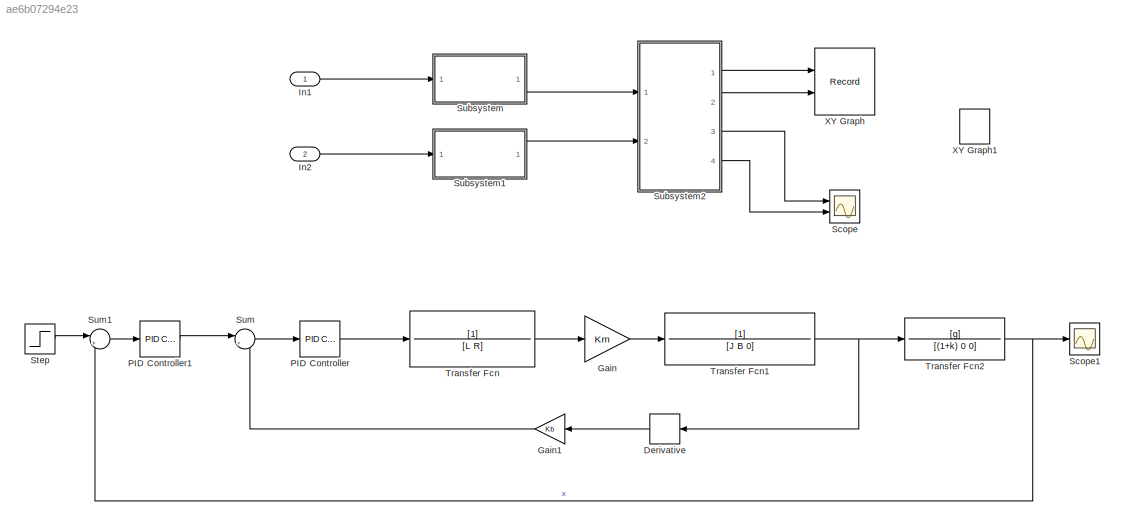
MODEL slx_ae6b07294e23
KIND model
CONFIG AbsTol = auto
CONFIG EnableMultiTasking = off
CONFIG FixedStep = auto
CONFIG MaxStep = auto
CONFIG MinStep = auto
CONFIG RelTol = 1e-3
CONFIG SampleTimeConstraint = Unconstrained
CONFIG SolverName = VariableStepAuto
CONFIG StartTime = 0.0
CONFIG StopTime = 10
BLOCK [Derivative] Derivative
  NameLocation = top
BLOCK [Gain] Gain
  Gain = Km
BLOCK [Gain] Gain1
  Gain = Kb
  NameLocation = top
BLOCK [Inport] In1
BLOCK [Inport] In2
  Port = 2
BLOCK [Reference] PID Controller  REF=slpidlib/PID Controller
  Ports = [1, 1]
  SourceBlock = slpidlib/PID Controller
  SourceProductBaseCode = SL
  SourceType = PID 1dof
BLOCK [Reference] PID Controller1  REF=slpidlib/PID Controller
  Ports = [1, 1]
  SourceBlock = slpidlib/PID Controller
  SourceProductBaseCode = SL
  SourceType = PID 1dof
BLOCK [Scope] Scope
  Floating = off
  NumInputPorts = 2
  Ports = [2]
  ScopeSpecificationString = Simulink.scopes.TimeScopeBlockCfg('CurrentConfiguration', extmgr.ConfigurationSet(extmgr.Configuration('Core','General UI',true),extmgr.Configuration('Core','Source UI',true),extmgr.Configuration('Sources','WiredSimulink',true),extmgr.Configuration('Visuals','Time Domain',true,'SerializedDisplays',{struct('MinYLimReal','-1.00000','MaxYLimReal','1.00000','YLabelReal','','MinYLimMag','0.00000','MaxY...<+1347ch>
BLOCK [Scope] Scope1
  Floating = off
  NumInputPorts = 1
  Ports = [1]
  ScopeSpecificationString = Simulink.scopes.TimeScopeBlockCfg('CurrentConfiguration', extmgr.ConfigurationSet(extmgr.Configuration('Core','General UI',true),extmgr.Configuration('Core','Source UI',true),extmgr.Configuration('Sources','WiredSimulink',true,'DataLoggingVariableName','ScopeData1'),extmgr.Configuration('Visuals','Time Domain',true,'SerializedDisplays',{struct('MinYLimReal','-12342629862392648.00000','MaxYLimReal'...<+1514ch>
BLOCK [Step] Step
  SampleTime = 0
  Time = 0
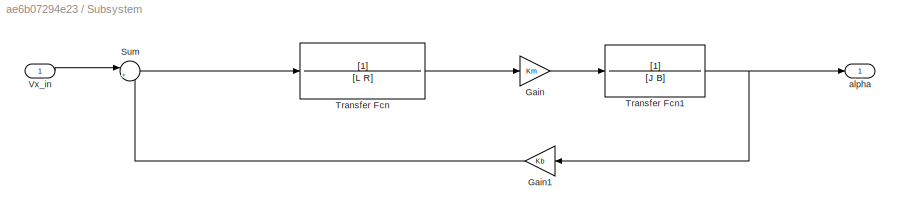
BLOCK [SubSystem] Subsystem
  Ports = [1, 1]
  RequestExecContextInheritance = off
BLOCK [Gain] Subsystem/Gain
  Gain = Km
BLOCK [Gain] Subsystem/Gain1
  Gain = Kb
  NameLocation = top
BLOCK [Sum] Subsystem/Sum
  Inputs = |+-
  Ports = [2, 1]
BLOCK [TransferFcn] Subsystem/Transfer Fcn
  Denominator = [L R]
BLOCK [TransferFcn] Subsystem/Transfer Fcn1
  Denominator = [J B]
BLOCK [Inport] Subsystem/Vx_in
BLOCK [Outport] Subsystem/alpha
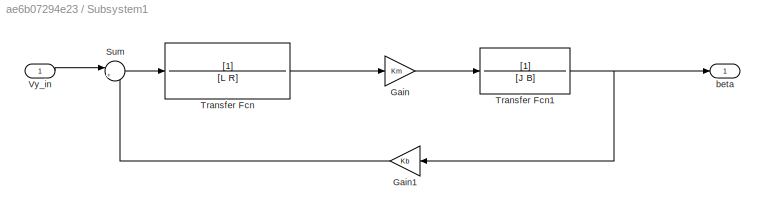
BLOCK [SubSystem] Subsystem1
  Ports = [1, 1]
  RequestExecContextInheritance = off
BLOCK [Gain] Subsystem1/Gain
  Gain = Km
BLOCK [Gain] Subsystem1/Gain1
  Gain = Kb
  NameLocation = top
BLOCK [Sum] Subsystem1/Sum
  Inputs = |+-
  Ports = [2, 1]
BLOCK [TransferFcn] Subsystem1/Transfer Fcn
  Denominator = [L R]
BLOCK [TransferFcn] Subsystem1/Transfer Fcn1
  Denominator = [J B]
BLOCK [Inport] Subsystem1/Vy_in
BLOCK [Outport] Subsystem1/beta
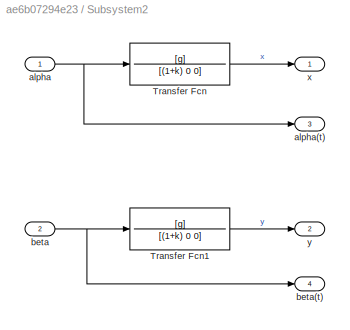
BLOCK [SubSystem] Subsystem2
  Ports = [2, 4]
  RequestExecContextInheritance = off
BLOCK [TransferFcn] Subsystem2/Transfer Fcn
  Denominator = [(1+k) 0 0]
  Numerator = [g]
BLOCK [TransferFcn] Subsystem2/Transfer Fcn1
  Denominator = [(1+k) 0 0]
  Numerator = [g]
BLOCK [Inport] Subsystem2/alpha
BLOCK [Outport] Subsystem2/alpha(t)
  Port = 3
BLOCK [Inport] Subsystem2/beta
  Port = 2
BLOCK [Outport] Subsystem2/beta(t)
  Port = 4
BLOCK [Outport] Subsystem2/x
BLOCK [Outport] Subsystem2/y
  Port = 2
BLOCK [Sum] Sum
  Inputs = |+-
  Ports = [2, 1]
BLOCK [Sum] Sum1
  Inputs = |+-
  Ports = [2, 1]
BLOCK [TransferFcn] Transfer Fcn
  Denominator = [L R]
BLOCK [TransferFcn] Transfer Fcn1
  Denominator = [J B 0]
BLOCK [TransferFcn] Transfer Fcn2
  Denominator = [(1+k) 0 0]
  Numerator = [g]
BLOCK [Record] XY Graph
  CompatibilityTag = XY
  FileSettingsInternal = {"entries":[{"content":{"excelSettings":{"content":{},"type":"Streamout.ExcelSettings"}},"type":"Streamout.FileSettingStorage","uuid":"78a4e250-05e6-44e0-a78a-87220abd5dd2"}],"packageUris":["http://schema.mathworks.com/mf0/streamout_blocks/R2020a"],"version":"1.0"}
  Layout = [1 1]
  Ports = [2]
  SignalsInternal = {"entries":[{"content":{"signals":[{"content":{"blockPath":["model_matlab/XY Graph"],"channel":[],"dimensions":[1],"domain":"model_matlab/XY Graph","lineColor":"#a2142f","plots":[1],"port":1,"sid":[""],"signalID":1550,"signalName":"Subsystem2:1"},"type":"RecordBlkView.Signal","uuid":"2434c325-6ec6-40bb-8e19-f466674402e7"},{"content":{"blockPath":["model_matlab/XY Graph"],"channel":[],"dimensions":...<+389ch>
  VisualizationBindings = {"xyplotplugin":{"info":[{"series":[{"bindingParametersList":[{"parameter":"X-Axis","signalID":1550,"signalName":"Subsystem2:1"},{"parameter":"Y-Axis","signalID":1554,"signalName":"Subsystem2:2"}],"seriesID":64349}],"subplotID":1}]}}
BLOCK [Record] XY Graph1
  CompatibilityTag = XY
  FileSettingsInternal = {"entries":[{"content":{"excelSettings":{"content":{},"type":"Streamout.ExcelSettings"}},"type":"Streamout.FileSettingStorage","uuid":"cc699d7d-bb06-4ba3-9f45-c4fb237144e4"}],"packageUris":["http://schema.mathworks.com/mf0/streamout_blocks/R2020a"],"version":"1.0"}
  Layout = [1 1]
  Ports = [2]
  SignalsInternal = {"entries":[{"content":{"signals":[{"content":{"blockPath":["model_matlab/XY Graph1"],"channel":[],"dimensions":[1],"domain":"model_matlab/XY Graph1","lineColor":"#a2142f","plots":[1],"port":1,"sid":[""],"signalID":1558},"type":"RecordBlkView.Signal","uuid":"f283e571-f734-4db6-a1ed-ae672e17f0ba"},{"content":{"blockPath":["model_matlab/XY Graph1"],"channel":[],"dimensions":[1],"domain":"model_matla...<+337ch>
  VisualizationBindings = {"xyplotplugin":{"info":[{"series":[{"bindingParametersList":[{"parameter":"X-Axis","signalID":1558,"signalName":"XY Graph1:1"},{"parameter":"Y-Axis","signalID":1562,"signalName":"XY Graph1:2"}],"seriesID":47058}],"subplotID":1}]}}
  st = -1
LINE Derivative:1 -> Gain1:1
LINE Gain1:1 -> Sum:2
LINE Gain:1 -> Transfer Fcn1:1
LINE In1:1 -> Subsystem:1
LINE In2:1 -> Subsystem1:1
LINE PID Controller1:1 -> Sum:1
LINE PID Controller:1 -> Transfer Fcn:1
LINE Step:1 -> Sum1:1
LINE Subsystem/Gain1:1 -> Subsystem/Sum:2
LINE Subsystem/Gain:1 -> Subsystem/Transfer Fcn1:1
LINE Subsystem/Sum:1 -> Subsystem/Transfer Fcn:1
NET Subsystem/Transfer Fcn1:1 -> Subsystem/Gain1:1, Subsystem/alpha:1
LINE Subsystem/Transfer Fcn:1 -> Subsystem/Gain:1
LINE Subsystem/Vx_in:1 -> Subsystem/Sum:1
LINE Subsystem1/Gain1:1 -> Subsystem1/Sum:2
LINE Subsystem1/Gain:1 -> Subsystem1/Transfer Fcn1:1
LINE Subsystem1/Sum:1 -> Subsystem1/Transfer Fcn:1
NET Subsystem1/Transfer Fcn1:1 -> Subsystem1/Gain1:1, Subsystem1/beta:1
LINE Subsystem1/Transfer Fcn:1 -> Subsystem1/Gain:1
LINE Subsystem1/Vy_in:1 -> Subsystem1/Sum:1
LINE Subsystem1:1 -> Subsystem2:2
LINE Subsystem2/Transfer Fcn1:1 -> Subsystem2/y:1
LINE Subsystem2/Transfer Fcn:1 -> Subsystem2/x:1
NET Subsystem2/alpha:1 -> Subsystem2/Transfer Fcn:1, Subsystem2/alpha(t):1
NET Subsystem2/beta:1 -> Subsystem2/Transfer Fcn1:1, Subsystem2/beta(t):1
LINE Subsystem2:1 -> XY Graph:1
LINE Subsystem2:2 -> XY Graph:2
LINE Subsystem2:3 -> Scope:1
LINE Subsystem2:4 -> Scope:2
LINE Subsystem:1 -> Subsystem2:1
LINE Sum1:1 -> PID Controller1:1
LINE Sum:1 -> PID Controller:1
NET Transfer Fcn1:1 -> Derivative:1, Transfer Fcn2:1
NET Transfer Fcn2:1 -> Scope1:1, Sum1:2
LINE Transfer Fcn:1 -> Gain:1
note: NET lines group one-source signal fan-out (src -> all destinations, sorted); 1:1 wires keep LINE
